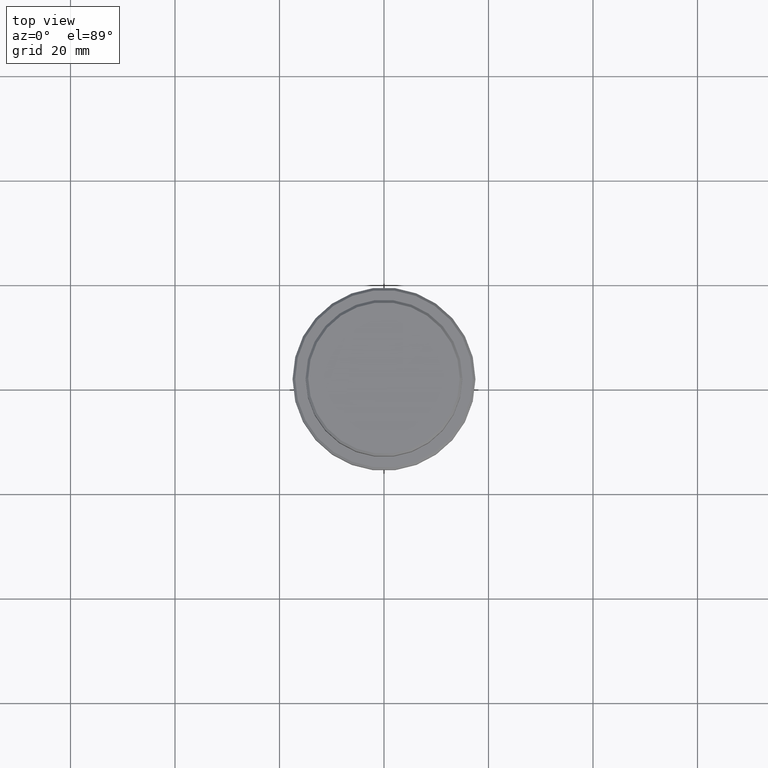
[diagram: clean part render]
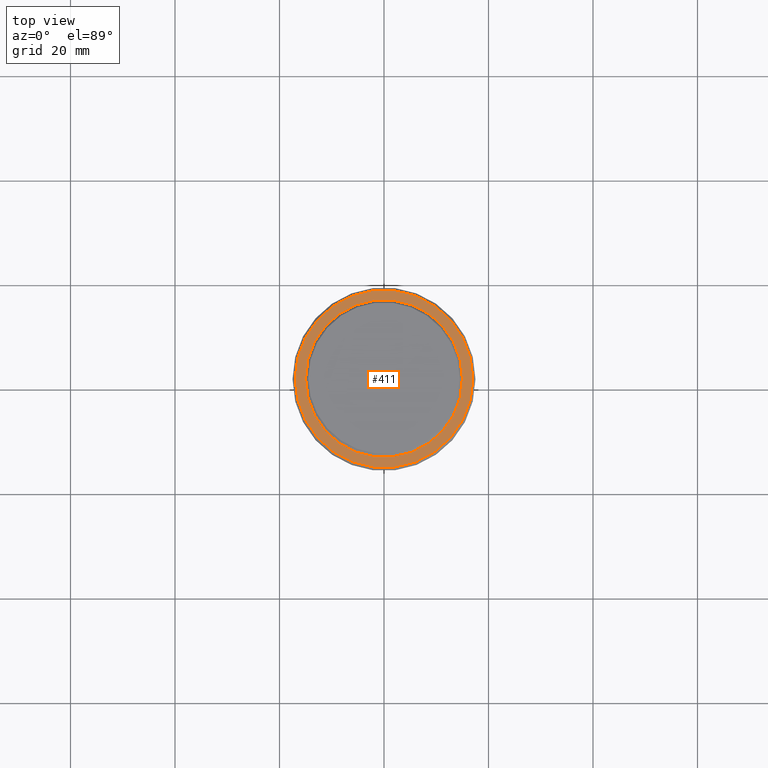
[diagram: same view with one face highlighted and labeled with its STEP entity id]
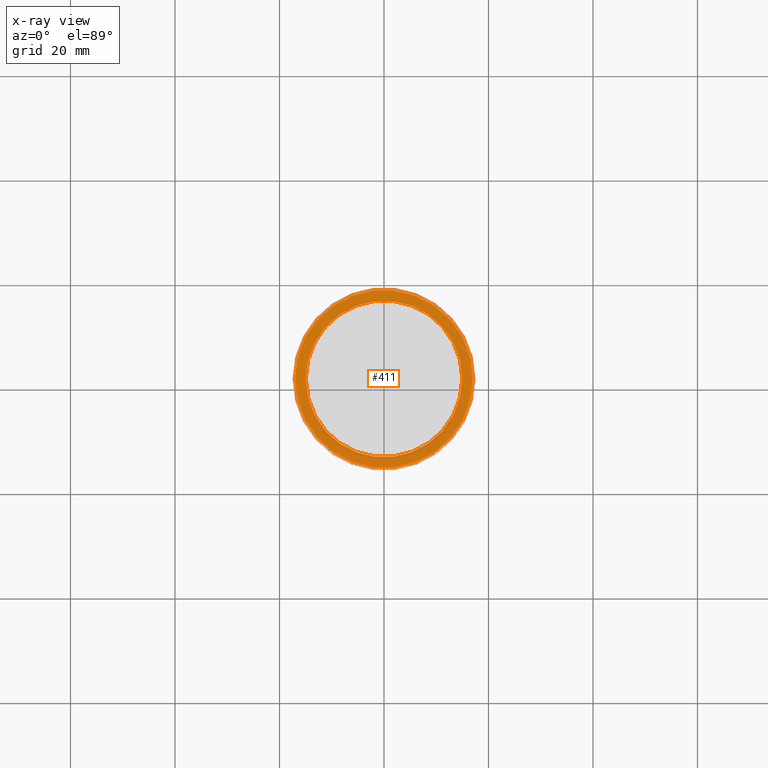
[diagram: x-ray of the same camera — body ghosted, the highlighted face saturated]
A machine part, top view. The second image highlights one B-rep face of the part: STEP entity #411.
The next image is the same camera in x-ray: the body ghosted, the highlighted face saturated — about 0% of this face is hidden behind the body in this view.
In plain terms, the highlighted planar face has unit normal (0, -0, 1).
Its self-contained STEP definition (entity closure, byte-faithful):
#129 = FACE_BOUND ( 'NONE', #983, .T. ) ;
#146 = DIRECTION ( 'NONE',  ( 0.000000000000000000, 0.000000000000000000, -1.000000000000000000 ) ) ;
#179 = AXIS2_PLACEMENT_3D ( 'NONE', #748, #1089, #876 ) ;
#201 = DIRECTION ( 'NONE',  ( 1.000000000000000000, 0.000000000000000000, 0.000000000000000000 ) ) ;
#213 = AXIS2_PLACEMENT_3D ( 'NONE', #340, #346, #369 ) ;
#238 = CARTESIAN_POINT ( 'NONE',  ( -17.00000000000001421, 0.000000000000000000, -9.000000000000001776 ) ) ;
#321 = DIRECTION ( 'NONE',  ( -0.000000000000000000, -0.000000000000000000, 1.000000000000000000 ) ) ;
#340 = CARTESIAN_POINT ( 'NONE',  ( 0.000000000000000000, 14.49999999999999467, -9.000000000000001776 ) ) ;
#346 = DIRECTION ( 'NONE',  ( 0.000000000000000000, -0.000000000000000000, 1.000000000000000000 ) ) ;
#353 = PLANE ( 'NONE',  #213 ) ;
#354 = VERTEX_POINT ( 'NONE', #1228 ) ;
#369 = DIRECTION ( 'NONE',  ( 1.000000000000000000, 0.000000000000000000, 0.000000000000000000 ) ) ;
#411 = ADVANCED_FACE ( 'NONE', ( #702, #129 ), #353, .T. ) ;
#479 = VERTEX_POINT ( 'NONE', #238 ) ;
#484 = CIRCLE ( 'NONE', #179, 14.99999999999999467 ) ;
#592 = CARTESIAN_POINT ( 'NONE',  ( 0.000000000000000000, 0.000000000000000000, -9.000000000000001776 ) ) ;
#597 = VERTEX_POINT ( 'NONE', #836 ) ;
#637 = DIRECTION ( 'NONE',  ( -0.000000000000000000, -0.000000000000000000, 1.000000000000000000 ) ) ;
#641 = AXIS2_PLACEMENT_3D ( 'NONE', #743, #637, #201 ) ;
#702 = FACE_OUTER_BOUND ( 'NONE', #1093, .T. ) ;
#715 = CIRCLE ( 'NONE', #831, 14.99999999999999467 ) ;
#743 = CARTESIAN_POINT ( 'NONE',  ( 0.000000000000000000, 0.000000000000000000, -9.000000000000001776 ) ) ;
#748 = CARTESIAN_POINT ( 'NONE',  ( 0.000000000000000000, 0.000000000000000000, -9.000000000000001776 ) ) ;
#791 = VERTEX_POINT ( 'NONE', #904 ) ;
#831 = AXIS2_PLACEMENT_3D ( 'NONE', #592, #146, #1010 ) ;
#833 = CIRCLE ( 'NONE', #1038, 17.00000000000001421 ) ;
#836 = CARTESIAN_POINT ( 'NONE',  ( -14.99999999999999467, 1.836970198721029194E-15, -9.000000000000001776 ) ) ;
#841 = ORIENTED_EDGE ( 'NONE', *, *, #843, .T. ) ;
#843 = EDGE_CURVE ( 'NONE', #479, #791, #1310, .T. ) ;
#875 = CARTESIAN_POINT ( 'NONE',  ( 0.000000000000000000, 0.000000000000000000, -9.000000000000001776 ) ) ;
#876 = DIRECTION ( 'NONE',  ( 1.000000000000000000, 0.000000000000000000, 0.000000000000000000 ) ) ;
#904 = CARTESIAN_POINT ( 'NONE',  ( 17.00000000000001421, 2.112515728529185250E-15, -9.000000000000001776 ) ) ;
#916 = EDGE_CURVE ( 'NONE', #597, #354, #715, .T. ) ;
#936 = ORIENTED_EDGE ( 'NONE', *, *, #1104, .T. ) ;
#959 = ORIENTED_EDGE ( 'NONE', *, *, #916, .T. ) ;
#976 = EDGE_CURVE ( 'NONE', #354, #597, #484, .T. ) ;
#983 = EDGE_LOOP ( 'NONE', ( #1131, #959 ) ) ;
#1010 = DIRECTION ( 'NONE',  ( 1.000000000000000000, 0.000000000000000000, 0.000000000000000000 ) ) ;
#1038 = AXIS2_PLACEMENT_3D ( 'NONE', #875, #321, #1309 ) ;
#1089 = DIRECTION ( 'NONE',  ( 0.000000000000000000, 0.000000000000000000, -1.000000000000000000 ) ) ;
#1093 = EDGE_LOOP ( 'NONE', ( #841, #936 ) ) ;
#1104 = EDGE_CURVE ( 'NONE', #791, #479, #833, .T. ) ;
#1131 = ORIENTED_EDGE ( 'NONE', *, *, #976, .T. ) ;
#1228 = CARTESIAN_POINT ( 'NONE',  ( 14.99999999999999467, 0.000000000000000000, -9.000000000000001776 ) ) ;
#1309 = DIRECTION ( 'NONE',  ( 1.000000000000000000, 0.000000000000000000, 0.000000000000000000 ) ) ;
#1310 = CIRCLE ( 'NONE', #641, 17.00000000000001421 ) ;